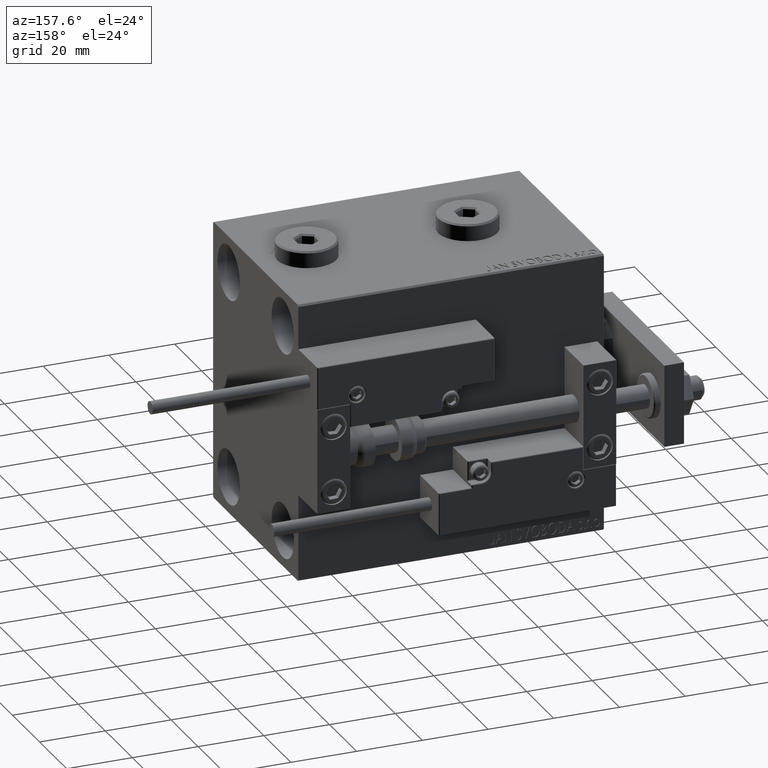
[diagram: clean part render]
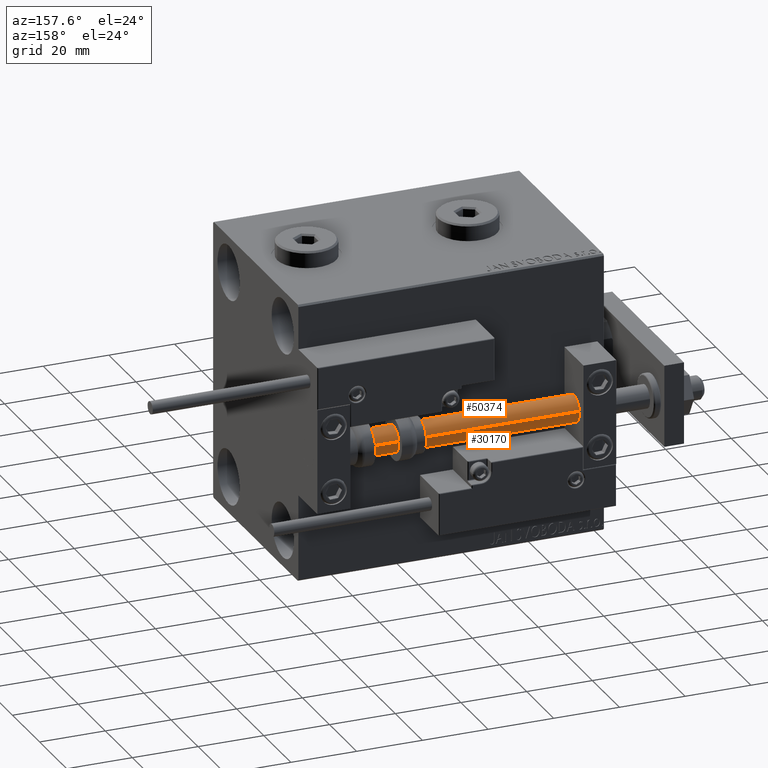
[diagram: same view with one multi-face feature highlighted, each face labeled with its STEP entity id]
A machine part, auxiliary view. The highlighted faces form ONE feature: a constant-radius fillet chain: 2 tangent blend faces with common blend radius 4 mm. The faces share edges in the B-rep.
Their STEP definitions:
[1] entity #30170 (Cylinder):
#832 = VERTEX_POINT ( 'NONE', #7804 ) ;
#1215 = AXIS2_PLACEMENT_3D ( 'NONE', #9768, #36639, #33229 ) ;
#1583 = CIRCLE ( 'NONE', #9045, 4.000000000000000000 ) ;
#3309 = ORIENTED_EDGE ( 'NONE', *, *, #38052, .T. ) ;
#3460 = VERTEX_POINT ( 'NONE', #27071 ) ;
#4455 = LINE ( 'NONE', #21140, #24283 ) ;
#5015 = EDGE_LOOP ( 'NONE', ( #9472, #11897, #46624, #3309 ) ) ;
#6360 = CYLINDRICAL_SURFACE ( 'NONE', #23929, 4.000000000000000000 ) ;
#6773 = DIRECTION ( 'NONE',  ( 1.000000000000000000, 0.000000000000000000, 0.000000000000000000 ) ) ;
#7804 = CARTESIAN_POINT ( 'NONE',  ( -4.000000000000000000, 0.000000000000000000, 93.00000000000000000 ) ) ;
#8606 = CARTESIAN_POINT ( 'NONE',  ( 4.000000000000000000, 4.898587196589411843E-16, 2.000000000000029310 ) ) ;
#9045 = AXIS2_PLACEMENT_3D ( 'NONE', #45634, #17754, #6773 ) ;
#9472 = ORIENTED_EDGE ( 'NONE', *, *, #50474, .F. ) ;
#9768 = CARTESIAN_POINT ( 'NONE',  ( 0.000000000000000000, 0.000000000000000000, 2.000000000000029310 ) ) ;
#10261 = FACE_OUTER_BOUND ( 'NONE', #5015, .T. ) ;
#10342 = EDGE_CURVE ( 'NONE', #832, #37954, #4455, .T. ) ;
#11897 = ORIENTED_EDGE ( 'NONE', *, *, #47470, .F. ) ;
#13786 = LINE ( 'NONE', #29664, #14027 ) ;
#14027 = VECTOR ( 'NONE', #49753, 1000.000000000000000 ) ;
#15452 = DIRECTION ( 'NONE',  ( -1.000000000000000000, 0.000000000000000000, 0.000000000000000000 ) ) ;
#17754 = DIRECTION ( 'NONE',  ( 0.000000000000000000, 0.000000000000000000, 1.000000000000000000 ) ) ;
#21140 = CARTESIAN_POINT ( 'NONE',  ( -4.000000000000000000, 0.000000000000000000, 93.00000000000000000 ) ) ;
#23929 = AXIS2_PLACEMENT_3D ( 'NONE', #30577, #46745, #15452 ) ;
#24283 = VECTOR ( 'NONE', #37033, 1000.000000000000000 ) ;
#25334 = CIRCLE ( 'NONE', #1215, 4.000000000000000000 ) ;
#27071 = CARTESIAN_POINT ( 'NONE',  ( 4.000000000000000000, 4.898587196589411843E-16, 93.00000000000000000 ) ) ;
#29664 = CARTESIAN_POINT ( 'NONE',  ( 4.000000000000000000, 4.898587196589411843E-16, 93.00000000000000000 ) ) ;
#30170 = ADVANCED_FACE ( 'NONE', ( #10261 ), #6360, .T. ) ;
#30577 = CARTESIAN_POINT ( 'NONE',  ( 0.000000000000000000, 0.000000000000000000, 93.00000000000000000 ) ) ;
#33229 = DIRECTION ( 'NONE',  ( 1.000000000000000000, 0.000000000000000000, 0.000000000000000000 ) ) ;
#36639 = DIRECTION ( 'NONE',  ( -0.000000000000000000, -0.000000000000000000, 1.000000000000000000 ) ) ;
#37033 = DIRECTION ( 'NONE',  ( -0.000000000000000000, -0.000000000000000000, -1.000000000000000000 ) ) ;
#37954 = VERTEX_POINT ( 'NONE', #48885 ) ;
#38052 = EDGE_CURVE ( 'NONE', #37954, #45349, #25334, .T. ) ;
#45349 = VERTEX_POINT ( 'NONE', #8606 ) ;
#45634 = CARTESIAN_POINT ( 'NONE',  ( 0.000000000000000000, 0.000000000000000000, 93.00000000000000000 ) ) ;
#46624 = ORIENTED_EDGE ( 'NONE', *, *, #10342, .T. ) ;
#46745 = DIRECTION ( 'NONE',  ( -0.000000000000000000, -0.000000000000000000, -1.000000000000000000 ) ) ;
#47470 = EDGE_CURVE ( 'NONE', #832, #3460, #1583, .T. ) ;
#48885 = CARTESIAN_POINT ( 'NONE',  ( -4.000000000000000000, 0.000000000000000000, 2.000000000000029310 ) ) ;
#49753 = DIRECTION ( 'NONE',  ( -0.000000000000000000, -0.000000000000000000, -1.000000000000000000 ) ) ;
#50474 = EDGE_CURVE ( 'NONE', #3460, #45349, #13786, .T. ) ;
[2] entity #50374 (Cylinder):
#254 = DIRECTION ( 'NONE',  ( -1.000000000000000000, 0.000000000000000000, 0.000000000000000000 ) ) ;
#832 = VERTEX_POINT ( 'NONE', #7804 ) ;
#1797 = ORIENTED_EDGE ( 'NONE', *, *, #40542, .T. ) ;
#3460 = VERTEX_POINT ( 'NONE', #27071 ) ;
#4455 = LINE ( 'NONE', #21140, #24283 ) ;
#5959 = CARTESIAN_POINT ( 'NONE',  ( 0.000000000000000000, 0.000000000000000000, 93.00000000000000000 ) ) ;
#7804 = CARTESIAN_POINT ( 'NONE',  ( -4.000000000000000000, 0.000000000000000000, 93.00000000000000000 ) ) ;
#8056 = FACE_OUTER_BOUND ( 'NONE', #23454, .T. ) ;
#8585 = CYLINDRICAL_SURFACE ( 'NONE', #25737, 4.000000000000000000 ) ;
#8606 = CARTESIAN_POINT ( 'NONE',  ( 4.000000000000000000, 4.898587196589411843E-16, 2.000000000000029310 ) ) ;
#10342 = EDGE_CURVE ( 'NONE', #832, #37954, #4455, .T. ) ;
#13786 = LINE ( 'NONE', #29664, #14027 ) ;
#14027 = VECTOR ( 'NONE', #49753, 1000.000000000000000 ) ;
#14298 = DIRECTION ( 'NONE',  ( 0.000000000000000000, 0.000000000000000000, 1.000000000000000000 ) ) ;
#16947 = CARTESIAN_POINT ( 'NONE',  ( 0.000000000000000000, 0.000000000000000000, 93.00000000000000000 ) ) ;
#19011 = CIRCLE ( 'NONE', #36511, 4.000000000000000000 ) ;
#21140 = CARTESIAN_POINT ( 'NONE',  ( -4.000000000000000000, 0.000000000000000000, 93.00000000000000000 ) ) ;
#22363 = ORIENTED_EDGE ( 'NONE', *, *, #47827, .F. ) ;
#23454 = EDGE_LOOP ( 'NONE', ( #22363, #39398, #1797, #49331 ) ) ;
#23722 = DIRECTION ( 'NONE',  ( 1.000000000000000000, 0.000000000000000000, 0.000000000000000000 ) ) ;
#24283 = VECTOR ( 'NONE', #37033, 1000.000000000000000 ) ;
#24477 = DIRECTION ( 'NONE',  ( -0.000000000000000000, -0.000000000000000000, -1.000000000000000000 ) ) ;
#25737 = AXIS2_PLACEMENT_3D ( 'NONE', #16947, #24477, #254 ) ;
#27071 = CARTESIAN_POINT ( 'NONE',  ( 4.000000000000000000, 4.898587196589411843E-16, 93.00000000000000000 ) ) ;
#29664 = CARTESIAN_POINT ( 'NONE',  ( 4.000000000000000000, 4.898587196589411843E-16, 93.00000000000000000 ) ) ;
#30181 = DIRECTION ( 'NONE',  ( 1.000000000000000000, 0.000000000000000000, 0.000000000000000000 ) ) ;
#30395 = AXIS2_PLACEMENT_3D ( 'NONE', #35203, #39372, #23722 ) ;
#35203 = CARTESIAN_POINT ( 'NONE',  ( 0.000000000000000000, 0.000000000000000000, 2.000000000000029310 ) ) ;
#36511 = AXIS2_PLACEMENT_3D ( 'NONE', #5959, #14298, #30181 ) ;
#37033 = DIRECTION ( 'NONE',  ( -0.000000000000000000, -0.000000000000000000, -1.000000000000000000 ) ) ;
#37954 = VERTEX_POINT ( 'NONE', #48885 ) ;
#39372 = DIRECTION ( 'NONE',  ( -0.000000000000000000, -0.000000000000000000, 1.000000000000000000 ) ) ;
#39398 = ORIENTED_EDGE ( 'NONE', *, *, #50474, .T. ) ;
#40542 = EDGE_CURVE ( 'NONE', #45349, #37954, #46223, .T. ) ;
#45349 = VERTEX_POINT ( 'NONE', #8606 ) ;
#46223 = CIRCLE ( 'NONE', #30395, 4.000000000000000000 ) ;
#47827 = EDGE_CURVE ( 'NONE', #3460, #832, #19011, .T. ) ;
#48885 = CARTESIAN_POINT ( 'NONE',  ( -4.000000000000000000, 0.000000000000000000, 2.000000000000029310 ) ) ;
#49331 = ORIENTED_EDGE ( 'NONE', *, *, #10342, .F. ) ;
#49753 = DIRECTION ( 'NONE',  ( -0.000000000000000000, -0.000000000000000000, -1.000000000000000000 ) ) ;
#50374 = ADVANCED_FACE ( 'NONE', ( #8056 ), #8585, .T. ) ;
#50474 = EDGE_CURVE ( 'NONE', #3460, #45349, #13786, .T. ) ;